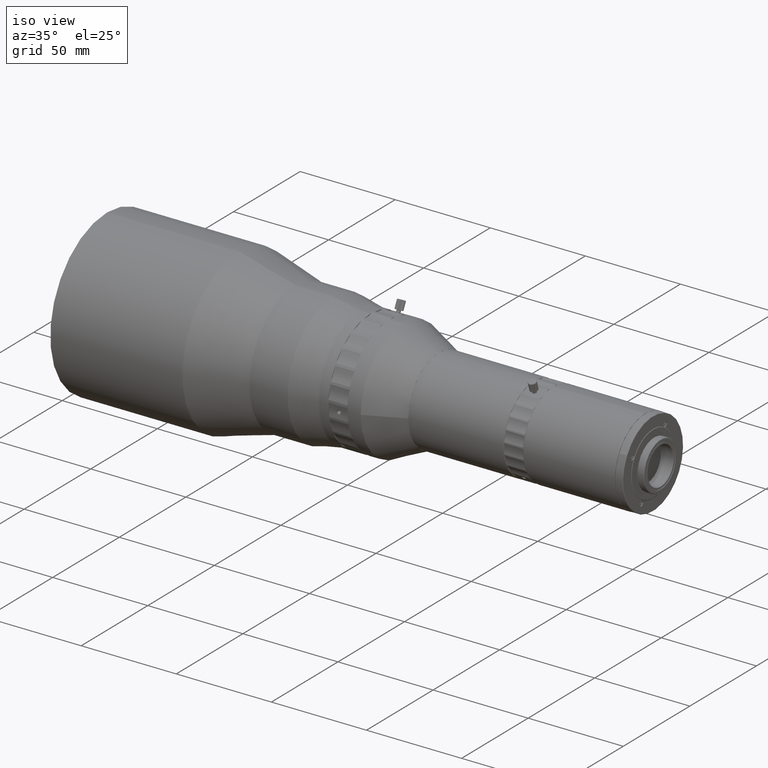
[diagram: clean part render]
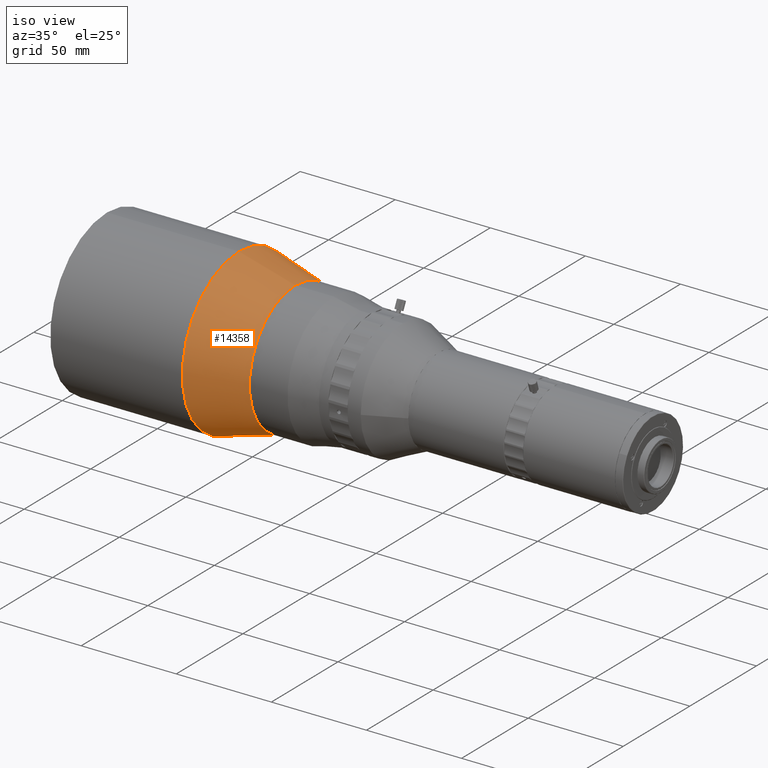
[diagram: same view with one face highlighted and labeled with its STEP entity id]
A machine part, iso view. The second image highlights one B-rep face of the part: STEP entity #14358.
In plain terms, the highlighted conical surface has half-angle 15.294 deg.
Its self-contained STEP definition (entity closure, byte-faithful):
#1358 = FACE_OUTER_BOUND ( 'NONE', #5534, .T. ) ;
#3074 = CARTESIAN_POINT ( 'NONE',  ( -14.15760549751940367, 10.19269740323191975, 154.4499999608852647 ) ) ;
#5478 = ORIENTED_EDGE ( 'NONE', *, *, #33301, .T. ) ;
#5534 = EDGE_LOOP ( 'NONE', ( #34101 ) ) ;
#9407 = CARTESIAN_POINT ( 'NONE',  ( -14.15760549751940367, 10.19269740323191975, 154.4499999608852647 ) ) ;
#12095 = CARTESIAN_POINT ( 'NONE',  ( -14.15760549751940367, 10.19269740323191975, 197.0499999608850032 ) ) ;
#12227 = DIRECTION ( 'NONE',  ( 0.000000000000000000, 0.000000000000000000, 1.000000000000000000 ) ) ;
#13319 = DIRECTION ( 'NONE',  ( -1.000000000000000000, 0.000000000000000000, 0.000000000000000000 ) ) ;
#14358 = ADVANCED_FACE ( 'NONE', ( #1358, #44112 ), #42502, .T. ) ;
#15243 = VERTEX_POINT ( 'NONE', #23303 ) ;
#20009 = DIRECTION ( 'NONE',  ( -1.000000000000000000, -0.000000000000000000, -0.000000000000000000 ) ) ;
#20707 = VERTEX_POINT ( 'NONE', #12095 ) ;
#22599 = CARTESIAN_POINT ( 'NONE',  ( 15.46267930835990079, 10.19269740323191975, 154.4499999608852647 ) ) ;
#23303 = CARTESIAN_POINT ( 'NONE',  ( 15.46267930835990079, 10.19269740323191975, 188.9499999608845826 ) ) ;
#25085 = CIRCLE ( 'NONE', #26817, 34.49999999999931077 ) ;
#26817 = AXIS2_PLACEMENT_3D ( 'NONE', #22599, #38972, #43420 ) ;
#29193 = EDGE_LOOP ( 'NONE', ( #5478 ) ) ;
#30795 = DIRECTION ( 'NONE',  ( 0.000000000000000000, 0.000000000000000000, 1.000000000000000000 ) ) ;
#33301 = EDGE_CURVE ( 'NONE', #15243, #15243, #25085, .T. ) ;
#34101 = ORIENTED_EDGE ( 'NONE', *, *, #35036, .F. ) ;
#35036 = EDGE_CURVE ( 'NONE', #20707, #20707, #40202, .T. ) ;
#35394 = AXIS2_PLACEMENT_3D ( 'NONE', #9407, #13319, #30795 ) ;
#38972 = DIRECTION ( 'NONE',  ( -1.000000000000000000, 0.000000000000000000, 0.000000000000000000 ) ) ;
#40202 = CIRCLE ( 'NONE', #43766, 42.59999999999975273 ) ;
#42502 = CONICAL_SURFACE ( 'NONE', #35394, 42.59999999999975273, 0.2669350818406548975 ) ;
#43420 = DIRECTION ( 'NONE',  ( 0.000000000000000000, 0.000000000000000000, 1.000000000000000000 ) ) ;
#43766 = AXIS2_PLACEMENT_3D ( 'NONE', #3074, #20009, #12227 ) ;
#44112 = FACE_BOUND ( 'NONE', #29193, .T. ) ;